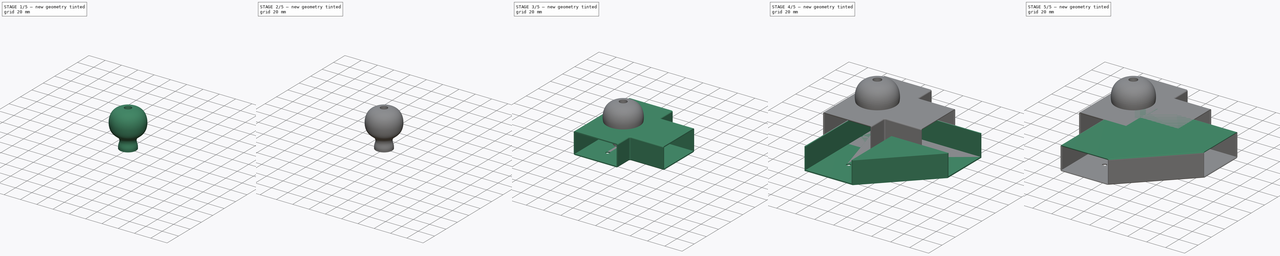
[diagram: build sequence overview — one tinted view per stage of 5, left to right]
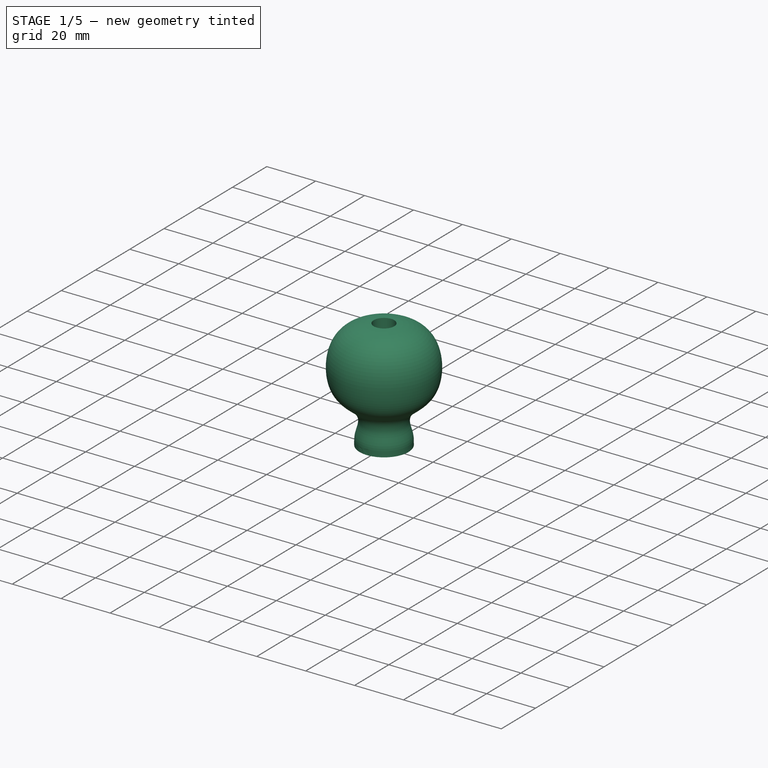
[diagram: stage 1 of 5 — iso view after this stage's code; geometry added in this stage tinted green]
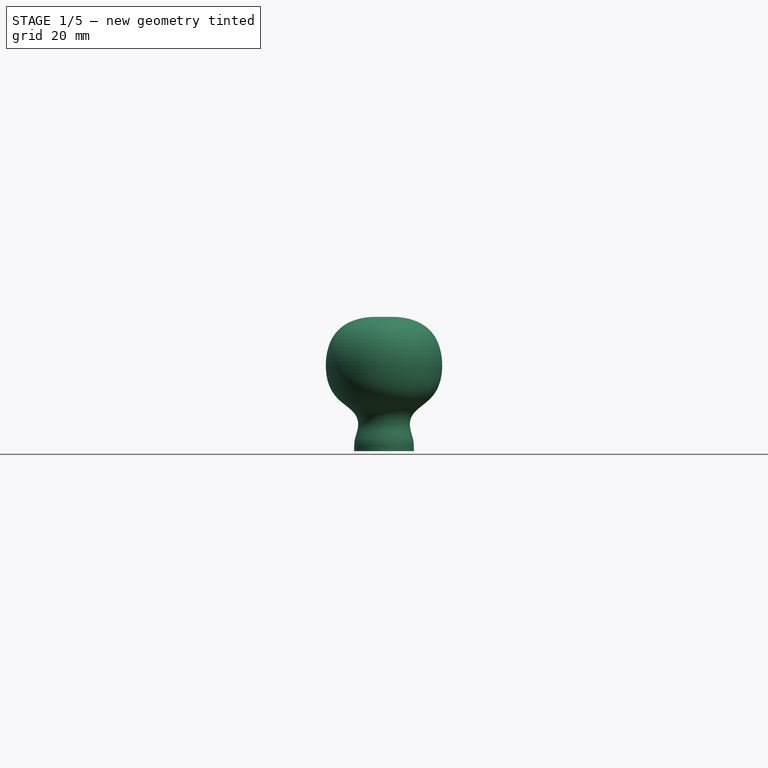
[diagram: stage 1 of 5 — front view after this stage's code; geometry added in this stage tinted green]
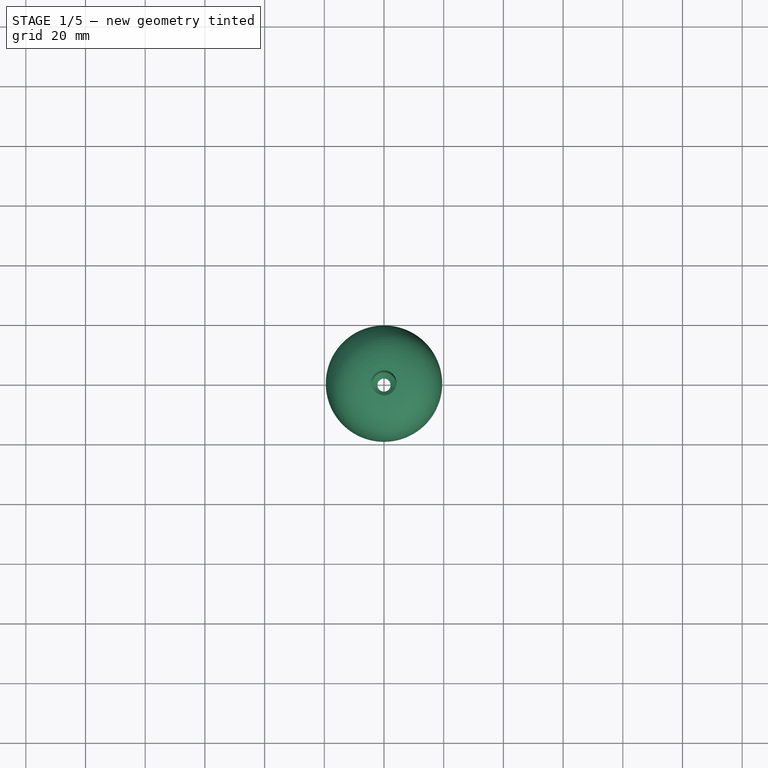
[diagram: stage 1 of 5 — top view after this stage's code; geometry added in this stage tinted green]
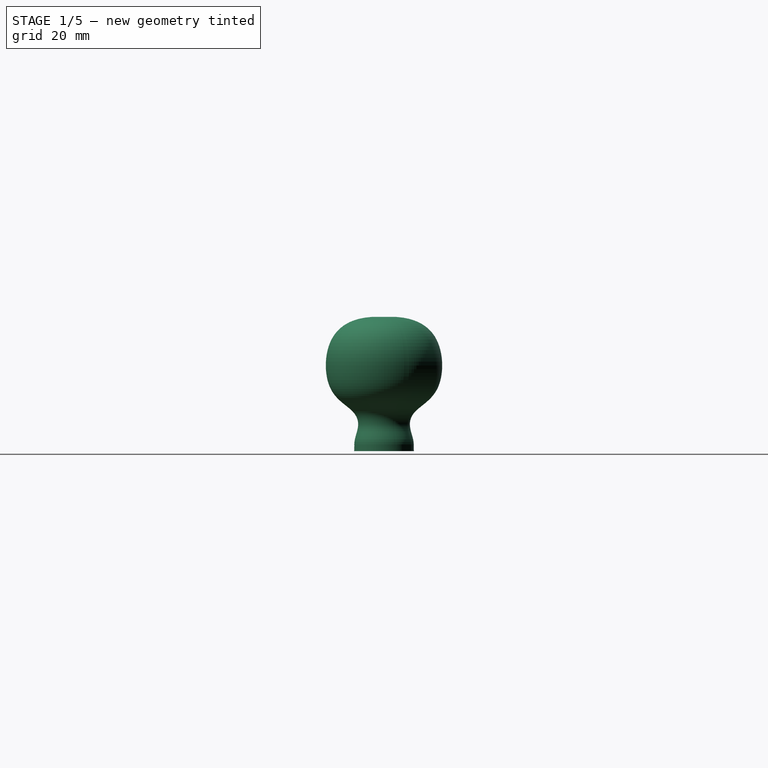
[diagram: stage 1 of 5 — right view after this stage's code; geometry added in this stage tinted green]
FCSTD DOCUMENT  (FreeCAD 0.19R24291 (Git))
Label: MosquitoNetFrame
License: All rights reserved
LicenseURL: http://en.wikipedia.org/wiki/All_rights_reserved
objects: Sketcher::SketchObject×11, PartDesign::Pad×7, PartDesign::Chamfer×4, PartDesign::Body×4, PartDesign::Fillet×3, Spreadsheet::Sheet×1, PartDesign::Revolution×1, PartDesign::Pocket×1
note: 47 computed .brp shape members not serialized (recipe doc carries the construction recipe); baked Part::Feature solids carry a one-line shape summary decoded from their .brp

FEATURE [PartDesign::Body] Body002  label="Washer"
  Group = -> [Sketch008,Pad006,Fillet002,Chamfer002]
  Origin = -> Origin002
  Tip = -> Chamfer002
FEATURE [Sketcher::SketchObject] Sketch009
  FullyConstrained = false
  MapMode = 5
  Placement = pos=(0,0,0) rot=(1,0,0;1.5708rad)
  Support = -> [XZ_Plane003]
  sketch-geometry (34):
    g0: GeomPoint X=-11.3292 Y=-24.0039 Z=0
    g1-g9: Circle x9 (B-spline internal-alignment scaffolding for g10; pole/knot coordinates omitted)
    g10: BSplineCurve PolesCount=9 KnotsCount=7 Degree=3 IsPeriodic=0
    g11-g17: GeomPoint x7 (B-spline internal-alignment scaffolding for g10; pole/knot coordinates omitted)
    g18: LineSegment StartX=-10 StartY=45 StartZ=0 EndX=-2.2 EndY=45 EndZ=0
    g19: LineSegment StartX=-10 StartY=0 StartZ=0 EndX=-2.2 EndY=0 EndZ=0
    g20: LineSegment StartX=-10 StartY=4 StartZ=0 EndX=-10 EndY=14 EndZ=0
    g21: LineSegment StartX=-10 StartY=14 StartZ=0 EndX=-8 EndY=9 EndZ=0
    g22: LineSegment StartX=-8 StartY=9 StartZ=0 EndX=-10 EndY=4 EndZ=0
    g23: LineSegment StartX=-2.2 StartY=0 StartZ=0 EndX=-2.2 EndY=45 EndZ=0
    g24: LineSegment StartX=-2.2 StartY=0 StartZ=0 EndX=0 EndY=0 EndZ=0
    g25: LineSegment StartX=0 StartY=0 StartZ=0 EndX=0 EndY=45 EndZ=0
    g26: LineSegment StartX=0 StartY=45 StartZ=0 EndX=-2.2 EndY=45 EndZ=0
    g27: LineSegment StartX=-10 StartY=4 StartZ=0 EndX=-10 EndY=0 EndZ=0
    g28: LineSegment StartX=-20 StartY=39.5 StartZ=0 EndX=-20 EndY=19.5 EndZ=0
    g29: LineSegment StartX=-10 StartY=45 StartZ=0 EndX=-10 EndY=39.5 EndZ=0
    g30: LineSegment StartX=-10 StartY=39.5 StartZ=0 EndX=-10 EndY=19.5 EndZ=0
    g31: LineSegment StartX=-10 StartY=19.5 StartZ=0 EndX=-10 EndY=14 EndZ=0
    g32: LineSegment StartX=-10 StartY=19.5 StartZ=0 EndX=-20 EndY=19.5 EndZ=0
    g33: LineSegment StartX=-20 StartY=39.5 StartZ=0 EndX=-10 EndY=39.5 EndZ=0
  constraints (57):
    c: Weight(g1) = 1
    c: Equal(g1, g2-g9) x8
    c: InternalAlignment(g1-g9 -> g10) x9
    c: InternalAlignment(g11-g17 -> g10) x7
    c: Coincident(g18,g2)
    c: Coincident(g18,g10)
    c: Horizontal(g18)
    c: Coincident(g19,g10)
    c: Horizontal(g19)
    c: Equal(g19,g18)
    c: Coincident(g20,g7)
    c: Coincident(g20,g5)
    c: Vertical(g20)
    c: Coincident(g21,g5)
    c: Coincident(g21,g6)
    c: Coincident(g22,g6)
    c: Coincident(g22,g7)
    c: Equal(g21,g22)
    c: Coincident(g23,g19)
    c: Coincident(g23,g10)
    c: Vertical(g23)
    c: Coincident(g19,g24)
    c: Horizontal(g24)
    c: Coincident(g24,g25)
    c: Vertical(g25)
    c: Coincident(g25,g26)
    c: Coincident(g26,g10)
    c: Horizontal(g26)
    c: DistanceX(g10,g24) = 10
    c: DistanceX(g24,g24) = 2.2
    c: DistanceX(g5,g6) = 2
    c: Coincident(g27,g7)
    c: Coincident(g27,g10)
    c: Vertical(g27)
    c: Symmetric(g7,g10,g8)
    c: Coincident(g28,g3)
    c: Coincident(g28,g4)
    c: Vertical(g28)
    c: DistanceY(g10,g7) = 4
    c: DistanceY(g20,g20) = 10
    c: Coincident(g24,g-1)  '__ANCHOR__'
    c: DistanceY(g23,g23) = 45
    c: DistanceY(g28,g28) = 20
    c: Coincident(g29,g2)
    c: Vertical(g29)
    c: Coincident(g30,g29)
    c: Vertical(g30)
    c: Coincident(g31,g30)
    c: Coincident(g31,g5)
    c: Coincident(g32,g30)
    c: Coincident(g32,g4)
    c: Horizontal(g32)
    c: Coincident(g33,g3)
    c: Coincident(g33,g29)
    c: Horizontal(g33)
    c: Equal(g31,g29)
    c: DistanceX(g3,g2) = 10
FEATURE [PartDesign::Revolution] Revolution
  Angle = 360
  Axis = (0,-2e-16,1)
  Base = (0,0,0)
  Placement = pos=(0,0,0) rot=(1,0,0;1.5708rad)
  Profile = -> Sketch009
  ReferenceAxis = -> Sketch009 [V_Axis]
FEATURE [Sketcher::SketchObject] Sketch010
  AttachmentOffset = pos=(0,0,4) rot=(0,0,1;0rad)
  FullyConstrained = true
  MapMode = 5
  Placement = pos=(0,0,4) rot=(0,0,1;0rad)
  Support = -> [XY_Plane003]
  sketch-geometry (1):
    g0: Circle CenterX=0 CenterY=0 CenterZ=0 NormalX=0 NormalY=0 NormalZ=1 AngleXU=0 Radius=4.2
  constraints (2):
    c: Coincident(g0,g-1)
    c: Radius(g0) = 4.2
FEATURE [PartDesign::Pocket] Pocket
  BaseFeature = -> Revolution
  Length = 5
  Length2 = 100
  Placement = pos=(0,0,0) rot=(1,0,0;1.5708rad)
  Profile = -> Sketch010
  Reversed = true
  Type = 1
FEATURE [PartDesign::Chamfer] Chamfer003
  Angle = 45
  Base = -> Pocket [Edge8]
  BaseFeature = -> Pocket
  ChamferType = 0
  FlipDirection = false
  Placement = pos=(0,0,0) rot=(1,0,0;1.5708rad)
  Size = 1.99
  Size2 = 1
  SupportTransform = false
FEATURE [PartDesign::Body] Body003  label="Knob"
  Group = -> [Sketch009,Revolution,Sketch010,Pocket,Chamfer003]
  Origin = -> Origin003
  Tip = -> Chamfer003
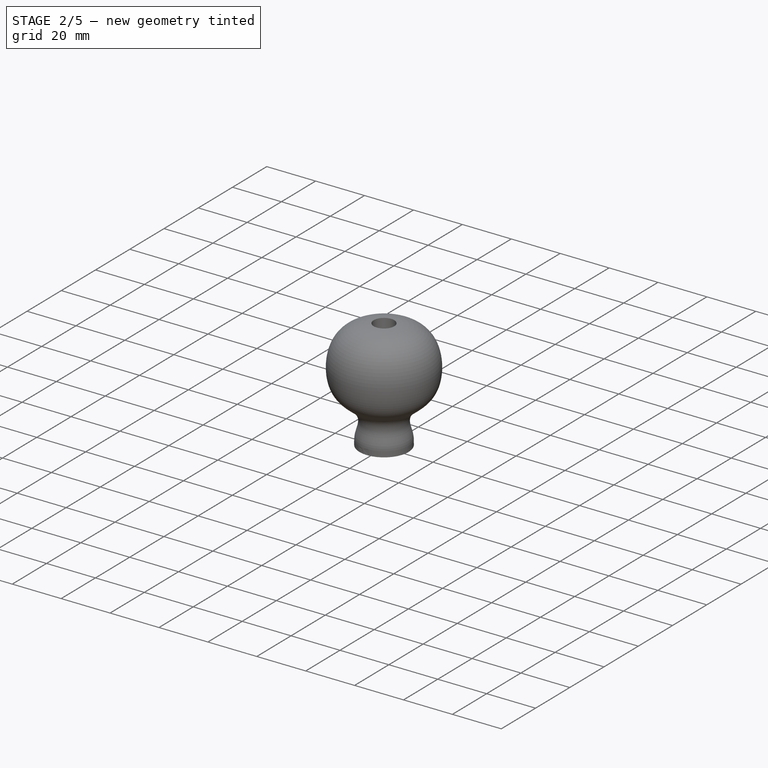
[diagram: stage 2 of 5 — iso view after this stage's code; geometry added in this stage tinted green]
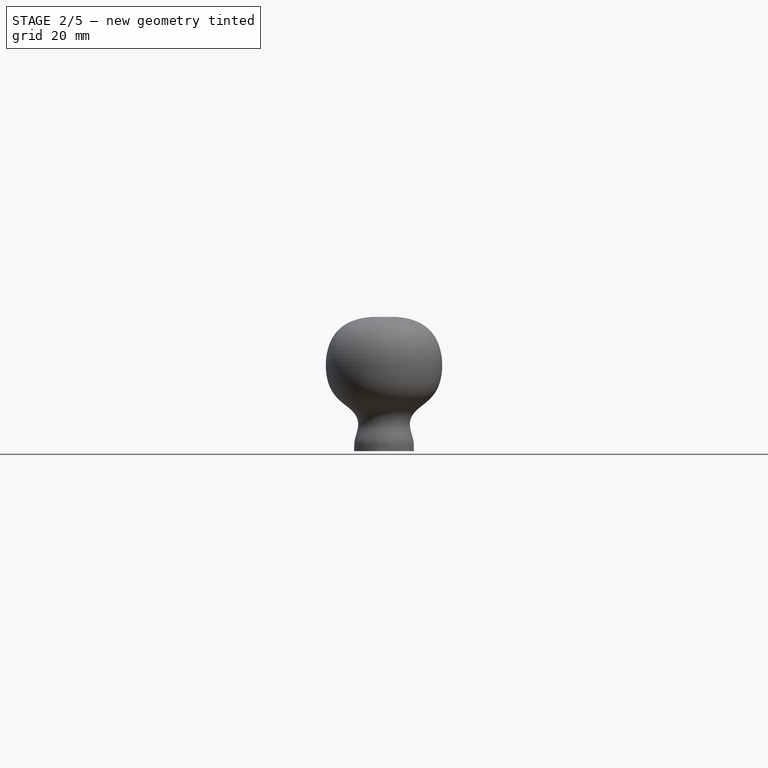
[diagram: stage 2 of 5 — front view after this stage's code; geometry added in this stage tinted green]
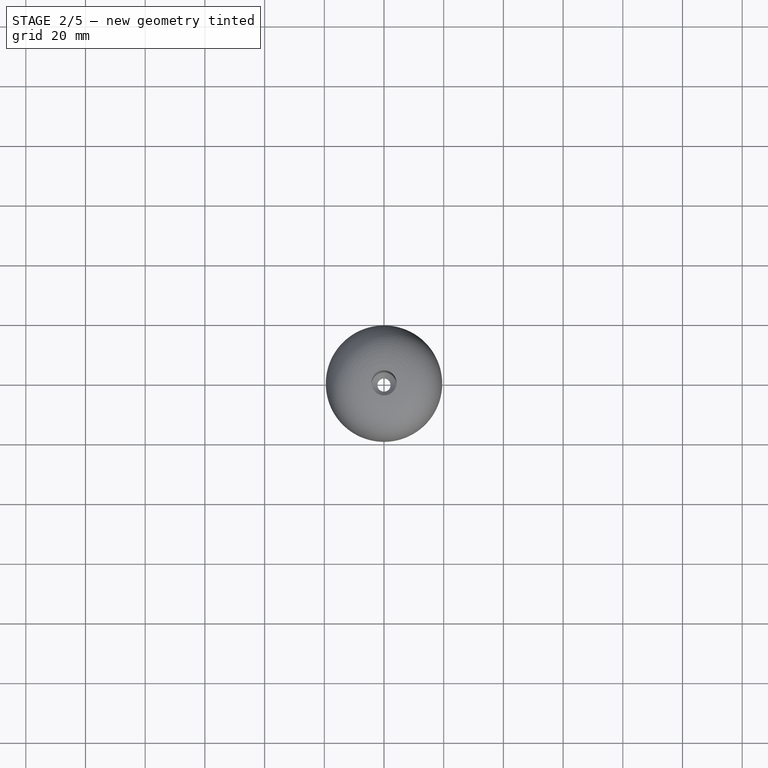
[diagram: stage 2 of 5 — top view after this stage's code; geometry added in this stage tinted green]
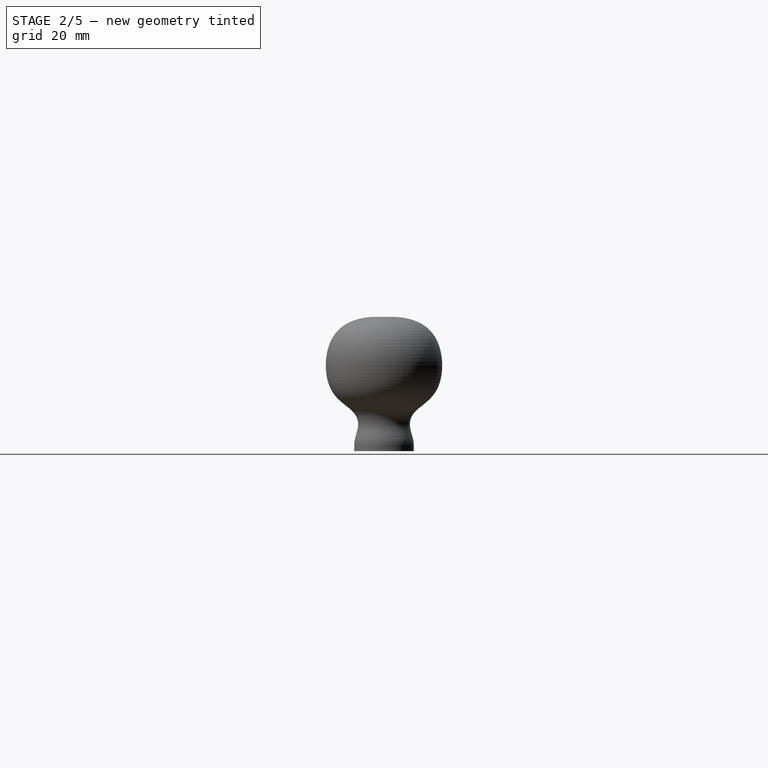
[diagram: stage 2 of 5 — right view after this stage's code; geometry added in this stage tinted green]
FEATURE [PartDesign::Body] Body001  label="MiddlePiece"
  Group = -> [Sketch004,Sketch005,Pad003,Sketch006,Pad004,Sketch007,Pad005,Fillet001,Chamfer001]
  Origin = -> Origin001
  Tip = -> Chamfer001
FEATURE [Sketcher::SketchObject] Sketch008
  FullyConstrained = true
  MapMode = 5
  Support = -> [XY_Plane002]
  sketch-geometry (2):
    g0: Circle CenterX=0 CenterY=0 CenterZ=0 NormalX=0 NormalY=0 NormalZ=1 AngleXU=0 Radius=2.2
    g1: Circle CenterX=0 CenterY=0 CenterZ=0 NormalX=0 NormalY=0 NormalZ=1 AngleXU=0 Radius=8.2
  constraints (4):
    c: Coincident(g0,g-1)
    c: Coincident(g1,g0)
    c: Radius(g0) = 2.2
    c: Radius(g1) = 8.2
FEATURE [PartDesign::Pad] Pad006
  Direction = (1,1,1)
  Length = 1.2
  Length2 = 100
  Profile = -> Sketch008
  Type = 0
FEATURE [PartDesign::Fillet] Fillet002
  Base = -> Pad006 [Edge3]
  BaseFeature = -> Pad006
  Radius = 1
  SupportTransform = false
FEATURE [PartDesign::Chamfer] Chamfer002
  Angle = 45
  Base = -> Fillet002 [Edge7]
  BaseFeature = -> Fillet002
  ChamferType = 0
  FlipDirection = false
  Size = 1
  Size2 = 1
  SupportTransform = false
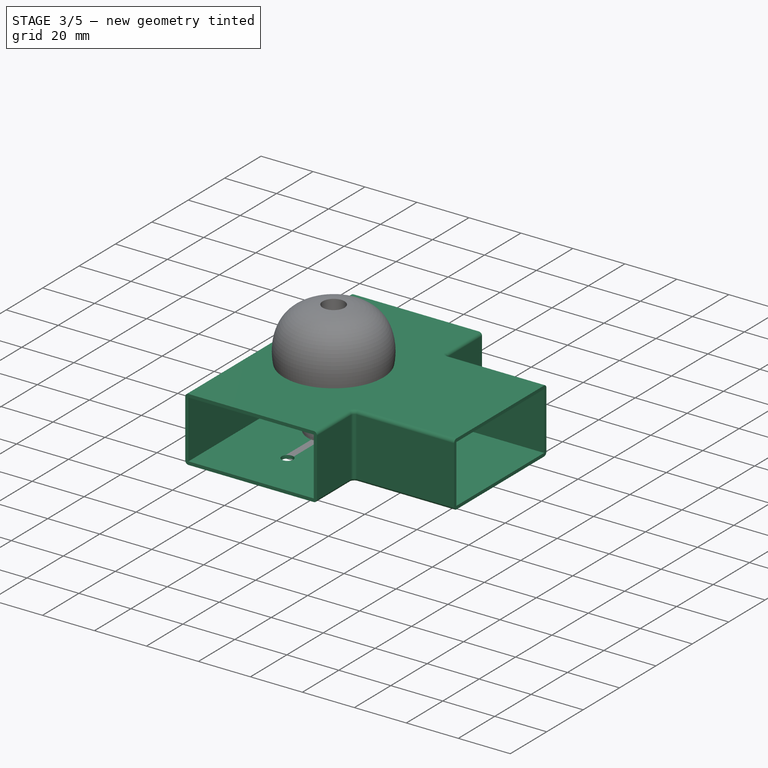
[diagram: stage 3 of 5 — iso view after this stage's code; geometry added in this stage tinted green]
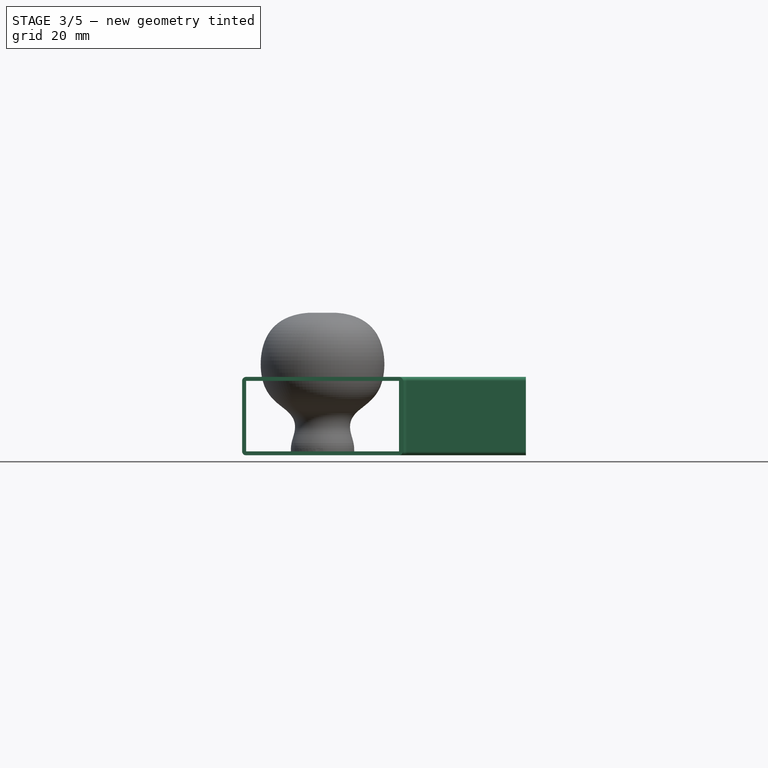
[diagram: stage 3 of 5 — front view after this stage's code; geometry added in this stage tinted green]
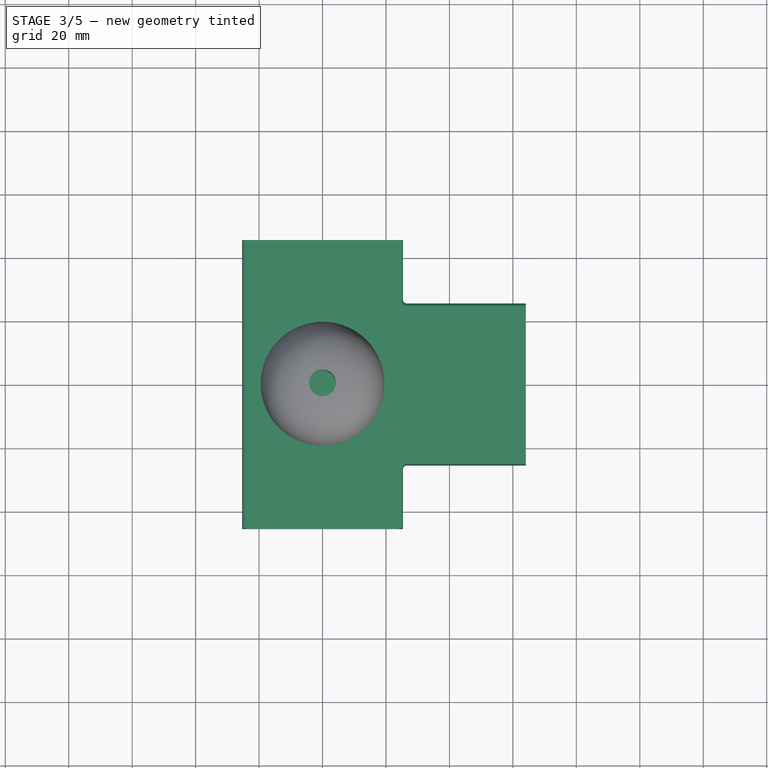
[diagram: stage 3 of 5 — top view after this stage's code; geometry added in this stage tinted green]
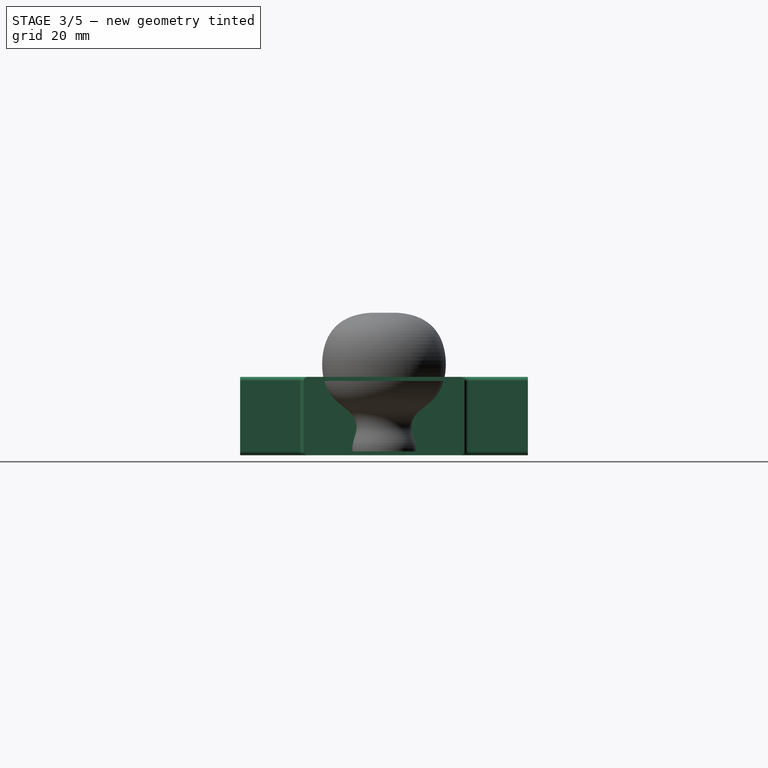
[diagram: stage 3 of 5 — right view after this stage's code; geometry added in this stage tinted green]
FEATURE [PartDesign::Body] Body  label="CornerPiece"
  Group = -> [Sketch,Sketch001,Pad,Sketch002,Pad001,Sketch003,Pad002,Fillet,Chamfer]
  Origin = -> Origin
  Tip = -> Chamfer
FEATURE [Spreadsheet::Sheet] Spreadsheet
  cells = B2=WallThickness; C2(WallThickness)==1.25mm; B3=SlatThickness; C3(SlatThickness)==22.2mm; B4=SlatWidth; C4(SlatWidth)==48.2mm
FEATURE [Sketcher::SketchObject] Sketch004  label="MP_Template_top"
  FullyConstrained = true
  MapMode = 5
  Support = -> [XY_Plane001]
  expr: Constraints[49] = <<Spreadsheet>>.WallThickness
  expr: Constraints[18] = <<Spreadsheet>>.SlatWidth
  sketch-geometry (23):
    g0: LineSegment StartX=-24.1 StartY=45.35 StartZ=0 EndX=-24.1 EndY=-45.35 EndZ=0
    g1: LineSegment StartX=-24.1 StartY=-45.35 StartZ=0 EndX=24.1 EndY=-45.35 EndZ=0
    g2: LineSegment StartX=24.1 StartY=-45.35 StartZ=0 EndX=24.1 EndY=-24.1 EndZ=0
    g3: LineSegment StartX=24.1 StartY=-24.1 StartZ=0 EndX=64.1 EndY=-24.1 EndZ=0
    g4: LineSegment StartX=64.1 StartY=-24.1 StartZ=0 EndX=64.1 EndY=24.1 EndZ=0
    g5: LineSegment StartX=64.1 StartY=24.1 StartZ=0 EndX=24.1 EndY=24.1 EndZ=0
    g6: LineSegment StartX=24.1 StartY=24.1 StartZ=0 EndX=24.1 EndY=45.35 EndZ=0
    g7: LineSegment StartX=24.1 StartY=45.35 StartZ=0 EndX=-24.1 EndY=45.35 EndZ=0
    g8: LineSegment StartX=-24.1 StartY=-45.35 StartZ=0 EndX=-25.35 EndY=-45.35 EndZ=0
    g9: LineSegment StartX=-25.35 StartY=-45.35 StartZ=0 EndX=-25.35 EndY=45.35 EndZ=0
    g10: LineSegment StartX=-25.35 StartY=45.35 StartZ=0 EndX=-24.1 EndY=45.35 EndZ=0
    g11: LineSegment StartX=24.1 StartY=45.35 StartZ=0 EndX=25.35 EndY=45.35 EndZ=0
    g12: LineSegment StartX=25.35 StartY=45.35 StartZ=0 EndX=25.35 EndY=25.35 EndZ=0
    g13: LineSegment StartX=25.35 StartY=25.35 StartZ=0 EndX=64.1 EndY=25.35 EndZ=0
    g14: LineSegment StartX=64.1 StartY=25.35 StartZ=0 EndX=64.1 EndY=24.1 EndZ=0
    g15: LineSegment StartX=24.1 StartY=-45.35 StartZ=0 EndX=25.35 EndY=-45.35 EndZ=0
    g16: LineSegment StartX=25.35 StartY=-45.35 StartZ=0 EndX=25.35 EndY=-25.35 EndZ=0
    g17: LineSegment StartX=25.35 StartY=-25.35 StartZ=0 EndX=64.1 EndY=-25.35 EndZ=0
    g18: LineSegment StartX=64.1 StartY=-25.35 StartZ=0 EndX=64.1 EndY=-24.1 EndZ=0
    g19: Circle CenterX=-3e-15 CenterY=-25.35 CenterZ=0 NormalX=0 NormalY=0 NormalZ=1 AngleXU=0 Radius=2.2
    g20: Circle CenterX=-3e-15 CenterY=25.35 CenterZ=0 NormalX=0 NormalY=0 NormalZ=1 AngleXU=0 Radius=2.2
    g21: Circle CenterX=44.1 CenterY=-4.1e-15 CenterZ=0 NormalX=0 NormalY=0 NormalZ=1 AngleXU=0 Radius=2.2
    g22: LineSegment StartX=-3e-15 StartY=45.35 StartZ=0 EndX=-3e-15 EndY=-45.35 EndZ=0
  constraints (64):
    c: Vertical(g0)
    c: Coincident(g0,g1)
    c: Horizontal(g1)
    c: Coincident(g1,g2)
    c: Vertical(g2)
    c: Coincident(g2,g3)
    c: Horizontal(g3)
    c: Coincident(g3,g4)
    c: Vertical(g4)
    c: Coincident(g4,g5)
    c: Coincident(g5,g6)
    c: Vertical(g6)
    c: Coincident(g6,g7)
    c: Coincident(g7,g0)
    c: Horizontal(g7)
    c: Horizontal(g5)
    c: Equal(g7,g4)
    c: Equal(g4,g1)
    c: DistanceX(g1,g1) = 48.2
    c: Equal(g2,g6)
    c: Coincident(g0,g8)
    c: Horizontal(g8)
    c: Coincident(g8,g9)
    c: Vertical(g9)
    c: Coincident(g9,g10)
    c: Coincident(g10,g0)
    c: Horizontal(g10)
    c: Coincident(g6,g11)
    c: Horizontal(g11)
    c: Coincident(g11,g12)
    c: Vertical(g12)
    c: Coincident(g12,g13)
    c: Horizontal(g13)
    c: Coincident(g13,g14)
    c: Coincident(g14,g4)
    c: Vertical(g14)
    c: Coincident(g1,g15)
    c: Horizontal(g15)
    c: Coincident(g15,g16)
    c: Vertical(g16)
    c: Coincident(g16,g17)
    c: Horizontal(g17)
    c: Coincident(g17,g18)
    c: Coincident(g18,g3)
    c: Vertical(g18)
    c: Equal(g15,g18)
    c: Equal(g18,g14)
    c: Equal(g14,g11)
    c: Equal(g11,g10)
    c: DistanceX(g8,g0) = 1.25
    c: DistanceY(g15,g17) = 20
    c: DistanceX(g6,g13) = 40
    c: Equal(g19,g21)
    c: Equal(g21,g20)
    c: Symmetric(g5,g3,g21)
    c: Radius(g21) = 2.2
    c: Symmetric(g0,g1,g-1)  '__ANCHOR__'
    c: PointOnObject(g22,g1)
    c: Vertical(g22)
    c: Symmetric(g0,g6,g22)
    c: PointOnObject(g20,g22)
    c: PointOnObject(g19,g22)
    c: PointOnObject(g20,g13)
    c: PointOnObject(g19,g17)
FEATURE [Sketcher::SketchObject] Sketch005  label="MP_Base"
  ExternalGeometry = -> [Sketch004]
  FullyConstrained = true
  MapMode = 5
  Support = -> [XY_Plane001]
  sketch-geometry (11):
    g0: LineSegment StartX=-25.35 StartY=45.35 StartZ=0 EndX=-25.35 EndY=-45.35 EndZ=0
    g1: LineSegment StartX=-25.35 StartY=-45.35 StartZ=0 EndX=25.35 EndY=-45.35 EndZ=0
    g2: LineSegment StartX=25.35 StartY=-45.35 StartZ=0 EndX=25.35 EndY=-25.35 EndZ=0
    g3: LineSegment StartX=25.35 StartY=-25.35 StartZ=0 EndX=64.1 EndY=-25.35 EndZ=0
    g4: LineSegment StartX=64.1 StartY=-25.35 StartZ=0 EndX=64.1 EndY=25.35 EndZ=0
    g5: LineSegment StartX=64.1 StartY=25.35 StartZ=0 EndX=25.35 EndY=25.35 EndZ=0
    g6: LineSegment StartX=25.35 StartY=25.35 StartZ=0 EndX=25.35 EndY=45.35 EndZ=0
    g7: LineSegment StartX=25.35 StartY=45.35 StartZ=0 EndX=-25.35 EndY=45.35 EndZ=0
    g8: Circle CenterX=0 CenterY=25.35 CenterZ=0 NormalX=0 NormalY=0 NormalZ=1 AngleXU=0 Radius=2.2
    g9: Circle CenterX=44.1 CenterY=0 CenterZ=0 NormalX=0 NormalY=0 NormalZ=1 AngleXU=0 Radius=2.2
    g10: Circle CenterX=0 CenterY=-25.35 CenterZ=0 NormalX=0 NormalY=0 NormalZ=1 AngleXU=0 Radius=2.2
  constraints (22):
    c: Coincident(g-3,g0)
    c: Coincident(g0,g-3)
    c: Coincident(g0,g1)
    c: Coincident(g1,g-7)
    c: Coincident(g1,g2)
    c: Coincident(g2,g-7)
    c: Coincident(g2,g3)
    c: Coincident(g3,g-5)
    c: Coincident(g3,g4)
    c: Coincident(g4,g-4)
    c: Coincident(g4,g5)
    c: Coincident(g5,g-6)
    c: Coincident(g5,g6)
    c: Coincident(g6,g-6)
    c: Coincident(g6,g7)
    c: Coincident(g7,g0)
    c: Coincident(g8,g-8)
    c: Coincident(g9,g-9)
    c: Coincident(g10,g-10)
    c: Equal(g10,g-10)
    c: Equal(g9,g-9)
    c: Equal(g-8,g8)
FEATURE [PartDesign::Pad] Pad003  label="MP_Base_"
  Direction = (1,1,1)
  Length = 1.25
  Length2 = 100
  Profile = -> Sketch005
  Type = 0
  expr: Length = <<Spreadsheet>>.WallThickness
FEATURE [Sketcher::SketchObject] Sketch006  label="MP_Walls"
  AttachmentOffset = pos=(0,0,1.25) rot=(0,0,1;0rad)
  ExternalGeometry = -> [Sketch004]
  FullyConstrained = true
  MapMode = 5
  Placement = pos=(0,0,1.25) rot=(0,0,1;0rad)
  Support = -> [XY_Plane001]
  expr: .AttachmentOffset.Base.z = <<MP_Base>>.AttachmentOffset.Base.z + <<MP_Base_>>.Length
  sketch-geometry (16):
    g0: LineSegment StartX=-25.35 StartY=45.35 StartZ=0 EndX=-24.1 EndY=45.35 EndZ=0
    g1: LineSegment StartX=-24.1 StartY=45.35 StartZ=0 EndX=-24.1 EndY=-45.35 EndZ=0
    g2: LineSegment StartX=-24.1 StartY=-45.35 StartZ=0 EndX=-25.35 EndY=-45.35 EndZ=0
    g3: LineSegment StartX=-25.35 StartY=-45.35 StartZ=0 EndX=-25.35 EndY=45.35 EndZ=0
    g4: LineSegment StartX=24.1 StartY=45.35 StartZ=0 EndX=24.1 EndY=24.1 EndZ=0
    g5: LineSegment StartX=24.1 StartY=24.1 StartZ=0 EndX=64.1 EndY=24.1 EndZ=0
    g6: LineSegment StartX=64.1 StartY=24.1 StartZ=0 EndX=64.1 EndY=25.35 EndZ=0
    g7: LineSegment StartX=64.1 StartY=25.35 StartZ=0 EndX=25.35 EndY=25.35 EndZ=0
    g8: LineSegment StartX=25.35 StartY=25.35 StartZ=0 EndX=25.35 EndY=45.35 EndZ=0
    g9: LineSegment StartX=25.35 StartY=45.35 StartZ=0 EndX=24.1 EndY=45.35 EndZ=0
    g10: LineSegment StartX=24.1 StartY=-45.35 StartZ=0 EndX=25.35 EndY=-45.35 EndZ=0
    g11: LineSegment StartX=25.35 StartY=-45.35 StartZ=0 EndX=25.35 EndY=-25.35 EndZ=0
    g12: LineSegment StartX=25.35 StartY=-25.35 StartZ=0 EndX=64.1 EndY=-25.35 EndZ=0
    g13: LineSegment StartX=64.1 StartY=-25.35 StartZ=0 EndX=64.1 EndY=-24.1 EndZ=0
    g14: LineSegment StartX=64.1 StartY=-24.1 StartZ=0 EndX=24.1 EndY=-24.1 EndZ=0
    g15: LineSegment StartX=24.1 StartY=-24.1 StartZ=0 EndX=24.1 EndY=-45.35 EndZ=0
  constraints (32):
    c: Coincident(g-3,g0)
    c: Coincident(g0,g-3)
    c: Coincident(g0,g1)
    c: Coincident(g1,g-4)
    c: Coincident(g1,g2)
    c: Coincident(g2,g-4)
    c: Coincident(g2,g3)
    c: Coincident(g3,g0)
    c: Coincident(g-9,g4)
    c: Coincident(g4,g-9)
    c: Coincident(g4,g5)
    c: Coincident(g5,g-8)
    c: Coincident(g5,g6)
    c: Coincident(g6,g-8)
    c: Coincident(g6,g7)
    c: Coincident(g7,g-10)
    c: Coincident(g7,g8)
    c: Coincident(g8,g-10)
    c: Coincident(g8,g9)
    c: Coincident(g9,g4)
    c: Coincident(g-5,g10)
    c: Coincident(g10,g-6)
    c: Coincident(g10,g11)
    c: Coincident(g11,g-6)
    c: Coincident(g11,g12)
    c: Coincident(g12,g-7)
    c: Coincident(g12,g13)
    c: Coincident(g13,g-7)
    c: Coincident(g13,g14)
    c: Coincident(g14,g-5)
    c: Coincident(g14,g15)
    c: Coincident(g15,g10)
FEATURE [PartDesign::Pad] Pad004  label="MP_Walls_"
  BaseFeature = -> Pad003
  Direction = (1,1,1)
  Length = 22.2
  Length2 = 100
  Profile = -> Sketch006
  Type = 0
  expr: Length = <<Spreadsheet>>.SlatThickness
FEATURE [Sketcher::SketchObject] Sketch007  label="MP_Top"
  AttachmentOffset = pos=(0,0,23.45) rot=(0,0,1;0rad)
  ExternalGeometry = -> [Sketch004]
  FullyConstrained = true
  MapMode = 5
  Placement = pos=(0,0,23.45) rot=(0,0,1;0rad)
  Support = -> [XY_Plane001]
  expr: .AttachmentOffset.Base.z = <<MP_Walls>>.AttachmentOffset.Base.z + <<MP_Walls_>>.Length
  sketch-geometry (8):
    g0: LineSegment StartX=-25.35 StartY=45.35 StartZ=0 EndX=-25.35 EndY=-45.35 EndZ=0
    g1: LineSegment StartX=-25.35 StartY=-45.35 StartZ=0 EndX=25.35 EndY=-45.35 EndZ=0
    g2: LineSegment StartX=25.35 StartY=-45.35 StartZ=0 EndX=25.35 EndY=-25.35 EndZ=0
    g3: LineSegment StartX=25.35 StartY=-25.35 StartZ=0 EndX=64.1 EndY=-25.35 EndZ=0
    g4: LineSegment StartX=64.1 StartY=-25.35 StartZ=0 EndX=64.1 EndY=25.35 EndZ=0
    g5: LineSegment StartX=64.1 StartY=25.35 StartZ=0 EndX=25.35 EndY=25.35 EndZ=0
    g6: LineSegment StartX=25.35 StartY=25.35 StartZ=0 EndX=25.35 EndY=45.35 EndZ=0
    g7: LineSegment StartX=25.35 StartY=45.35 StartZ=0 EndX=-25.35 EndY=45.35 EndZ=0
  constraints (16):
    c: Coincident(g-3,g0)
    c: Coincident(g0,g-3)
    c: Coincident(g0,g1)
    c: Coincident(g1,g-4)
    c: Coincident(g1,g2)
    c: Coincident(g2,g-4)
    c: Coincident(g2,g3)
    c: Coincident(g3,g-7)
    c: Coincident(g3,g4)
    c: Coincident(g4,g-6)
    c: Coincident(g4,g5)
    c: Coincident(g5,g-5)
    c: Coincident(g5,g6)
    c: Coincident(g6,g-5)
    c: Coincident(g6,g7)
    c: Coincident(g7,g0)
FEATURE [PartDesign::Pad] Pad005  label="MP_Top_"
  BaseFeature = -> Pad004
  Direction = (1,1,1)
  Length = 1.25
  Length2 = 100
  Profile = -> Sketch007
  Refine = true
  Type = 0
  expr: Length = <<Spreadsheet>>.WallThickness
FEATURE [PartDesign::Fillet] Fillet001
  Base = -> Pad005 [Edge7,Edge1,Edge3,Edge4,Edge6,Edge50,Edge49,Edge46,Edge47,Edge43,Edge55,Edge54]
  BaseFeature = -> Pad005
  Radius = 1.25
  SupportTransform = false
  expr: Radius = <<Spreadsheet>>.WallThickness
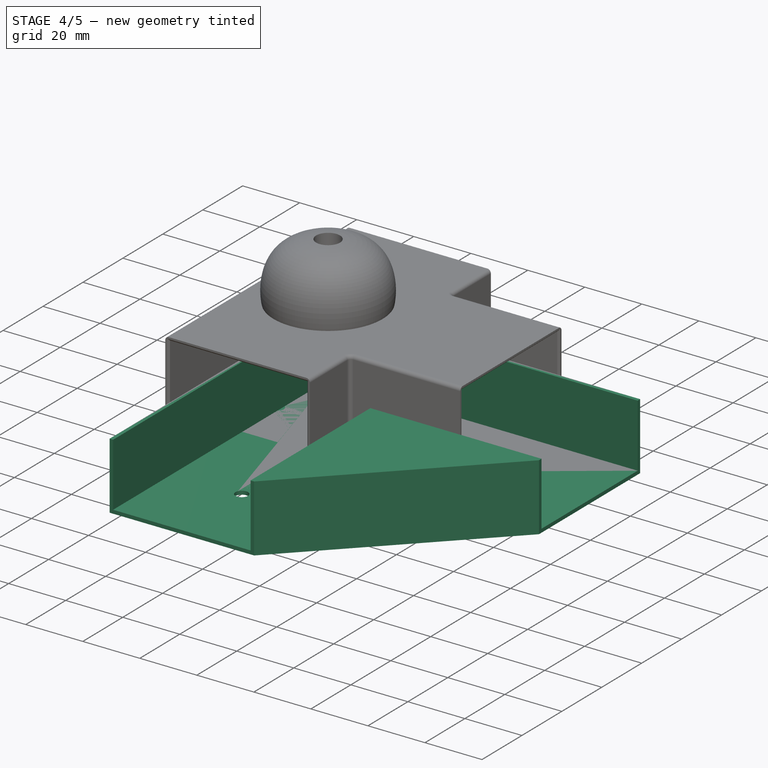
[diagram: stage 4 of 5 — iso view after this stage's code; geometry added in this stage tinted green]
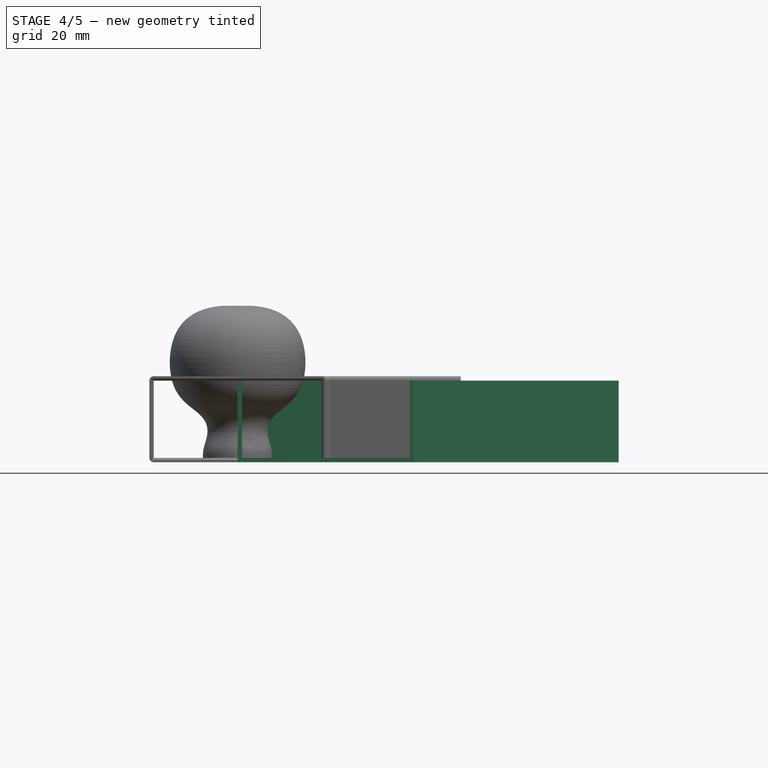
[diagram: stage 4 of 5 — front view after this stage's code; geometry added in this stage tinted green]
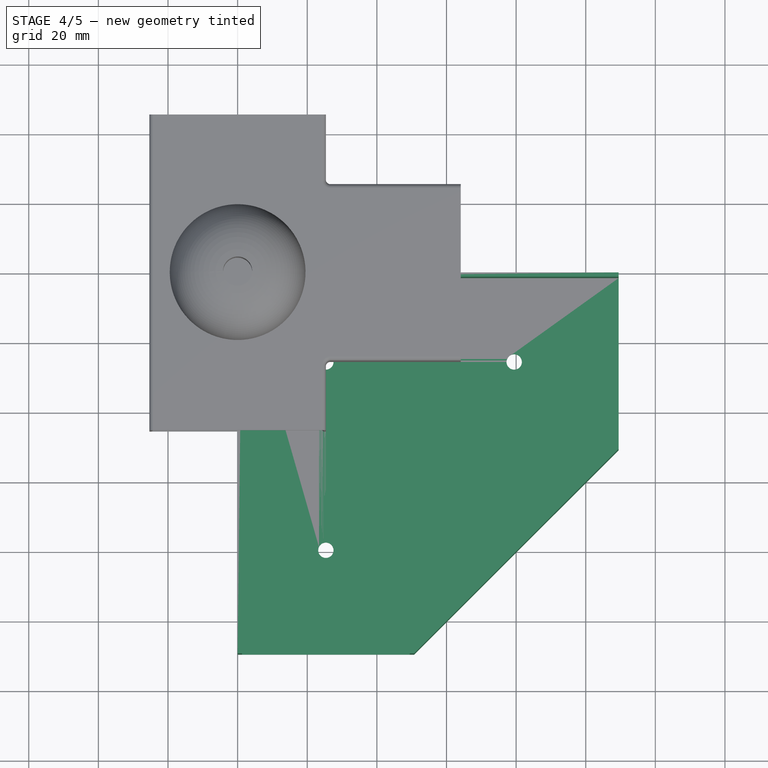
[diagram: stage 4 of 5 — top view after this stage's code; geometry added in this stage tinted green]
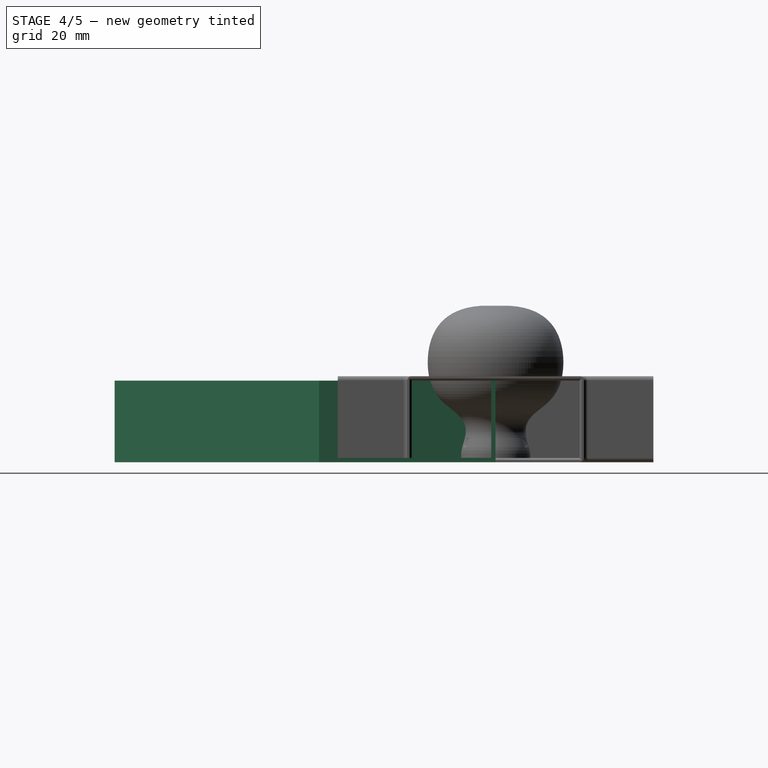
[diagram: stage 4 of 5 — right view after this stage's code; geometry added in this stage tinted green]
FEATURE [Sketcher::SketchObject] Sketch  label="CP_Template_top"
  FullyConstrained = true
  MapMode = 5
  Support = -> [XY_Plane]
  expr: Constraints[38] = <<Spreadsheet>>.SlatWidth
  expr: Constraints[37] = <<Spreadsheet>>.WallThickness
  sketch-geometry (18):
    g0: LineSegment StartX=49.45 StartY=-109.45 StartZ=0 EndX=1.25 EndY=-109.45 EndZ=0
    g1: LineSegment StartX=1.25 StartY=-109.45 StartZ=0 EndX=1.25 EndY=-1.25 EndZ=0
    g2: LineSegment StartX=1.25 StartY=-1.25 StartZ=0 EndX=109.45 EndY=-1.25 EndZ=0
    g3: LineSegment StartX=109.45 StartY=-1.25 StartZ=0 EndX=109.45 EndY=-49.45 EndZ=0
    g4: LineSegment StartX=49.45 StartY=-109.45 StartZ=0 EndX=49.45 EndY=-49.45 EndZ=0
    g5: LineSegment StartX=49.45 StartY=-49.45 StartZ=0 EndX=109.45 EndY=-49.45 EndZ=0
    g6: LineSegment StartX=1.25 StartY=-109.45 StartZ=0 EndX=0 EndY=-109.45 EndZ=0
    g7: LineSegment StartX=0 StartY=-109.45 StartZ=0 EndX=0 EndY=0 EndZ=0
    g8: LineSegment StartX=0 StartY=0 StartZ=0 EndX=109.45 EndY=0 EndZ=0
    g9: LineSegment StartX=109.45 StartY=0 StartZ=0 EndX=109.45 EndY=-1.25 EndZ=0
    g10: LineSegment StartX=49.45 StartY=-109.45 StartZ=0 EndX=50.7 EndY=-109.45 EndZ=0
    g11: LineSegment StartX=50.7 StartY=-109.45 StartZ=0 EndX=50.7 EndY=-50.7 EndZ=0
    g12: LineSegment StartX=50.7 StartY=-50.7 StartZ=0 EndX=109.45 EndY=-50.7 EndZ=0
    g13: LineSegment StartX=109.45 StartY=-50.7 StartZ=0 EndX=109.45 EndY=-49.45 EndZ=0
    g14: LineSegment StartX=50.7 StartY=-109.45 StartZ=0 EndX=109.45 EndY=-50.7 EndZ=0
    g15: Circle CenterX=25.35 CenterY=-79.45 CenterZ=0 NormalX=0 NormalY=0 NormalZ=1 AngleXU=0 Radius=2.2
    g16: Circle CenterX=79.45 CenterY=-25.35 CenterZ=0 NormalX=0 NormalY=0 NormalZ=1 AngleXU=0 Radius=2.2
    g17: Circle CenterX=25.35 CenterY=-25.35 CenterZ=0 NormalX=0 NormalY=0 NormalZ=1 AngleXU=0 Radius=2.2
  constraints (48):
    c: Horizontal(g0)
    c: Coincident(g0,g1)
    c: Vertical(g1)
    c: Coincident(g1,g2)
    c: Horizontal(g2)
    c: Coincident(g2,g3)
    c: Vertical(g3)
    c: Coincident(g0,g4)
    c: Vertical(g4)
    c: Coincident(g4,g5)
    c: Coincident(g5,g3)
    c: Horizontal(g5)
    c: Equal(g2,g1)
    c: Equal(g0,g3)
    c: Coincident(g0,g6)
    c: Horizontal(g6)
    c: Coincident(g6,g7)
    c: Vertical(g7)
    c: Coincident(g7,g8)
    c: Horizontal(g8)
    c: Coincident(g8,g9)
    c: Coincident(g9,g2)
    c: Vertical(g9)
    c: Coincident(g0,g10)
    c: Horizontal(g10)
    c: Coincident(g10,g11)
    c: Vertical(g11)
    c: Coincident(g11,g12)
    c: Horizontal(g12)
    c: Coincident(g12,g13)
    c: Coincident(g13,g3)
    c: Vertical(g13)
    c: Equal(g13,g9)
    c: Equal(g9,g6)
    c: Equal(g6,g10)
    c: Coincident(g14,g10)
    c: Coincident(g14,g12)
    c: DistanceX(g6,g6) = 1.25
    c: DistanceX(g0,g0) = 48.2
    c: DistanceX(g1,g8) = 108.2
    c: Coincident(g7,g-1)  '__ANCHOR__'
    c: Radius(g15) = 2.2
    c: Symmetric(g4,g2,g16)
    c: Equal(g16,g15)
    c: Symmetric(g1,g4,g17)
    c: Equal(g17,g16)
    c: Symmetric(g4,g0,g15)
    c: DistanceY(g6,g4) = 60
FEATURE [Sketcher::SketchObject] Sketch001  label="CP_Base"
  ExternalGeometry = -> [Sketch]
  FullyConstrained = true
  MapMode = 5
  Support = -> [XY_Plane]
  sketch-geometry (8):
    g0: LineSegment StartX=0 StartY=-109.45 StartZ=0 EndX=0 EndY=0 EndZ=0
    g1: LineSegment StartX=0 StartY=0 StartZ=0 EndX=109.45 EndY=-4e-16 EndZ=0
    g2: LineSegment StartX=109.45 StartY=-4e-16 StartZ=0 EndX=109.45 EndY=-50.7 EndZ=0
    g3: LineSegment StartX=109.45 StartY=-50.7 StartZ=0 EndX=50.7 EndY=-109.45 EndZ=0
    g4: LineSegment StartX=50.7 StartY=-109.45 StartZ=0 EndX=0 EndY=-109.45 EndZ=0
    g5: Circle CenterX=25.35 CenterY=-25.35 CenterZ=0 NormalX=0 NormalY=0 NormalZ=1 AngleXU=0 Radius=2.2
    g6: Circle CenterX=79.45 CenterY=-25.35 CenterZ=0 NormalX=0 NormalY=0 NormalZ=1 AngleXU=0 Radius=2.2
    g7: Circle CenterX=25.35 CenterY=-79.45 CenterZ=0 NormalX=0 NormalY=0 NormalZ=1 AngleXU=0 Radius=2.2
  constraints (16):
    c: Coincident(g-4,g0)
    c: Coincident(g0,g1)
    c: Coincident(g1,g-3)
    c: Coincident(g-4,g0)
    c: Coincident(g1,g2)
    c: Coincident(g2,g-5)
    c: Coincident(g2,g3)
    c: Coincident(g3,g-5)
    c: Coincident(g3,g4)
    c: Coincident(g4,g0)
    c: Coincident(g5,g-6)
    c: Coincident(g6,g-7)
    c: Coincident(g7,g-8)
    c: Equal(g7,g-8)
    c: Equal(g5,g-6)
    c: Equal(g6,g-7)
FEATURE [PartDesign::Pad] Pad  label="CP_Base_"
  Direction = (1,1,1)
  Length = 1.25
  Length2 = 100
  Profile = -> Sketch001
  Type = 0
  expr: Length = Spreadsheet.WallThickness
FEATURE [Sketcher::SketchObject] Sketch002  label="CP_Walls"
  AttachmentOffset = pos=(0,0,1.25) rot=(0,0,1;0rad)
  ExternalGeometry = -> [Sketch]
  FullyConstrained = true
  MapMode = 5
  Placement = pos=(0,0,1.25) rot=(0,0,1;0rad)
  Support = -> [XY_Plane]
  expr: .AttachmentOffset.Base.z = <<CP_Base>>.AttachmentOffset.Base.z + <<CP_Base_>>.Length
  sketch-geometry (11):
    g0: LineSegment StartX=109.45 StartY=-50.7 StartZ=0 EndX=50.7 EndY=-109.45 EndZ=0
    g1: LineSegment StartX=50.7 StartY=-109.45 StartZ=0 EndX=49.45 EndY=-109.45 EndZ=0
    g2: LineSegment StartX=49.45 StartY=-109.45 StartZ=0 EndX=49.45 EndY=-49.45 EndZ=0
    g3: LineSegment StartX=49.45 StartY=-49.45 StartZ=0 EndX=109.45 EndY=-49.45 EndZ=0
    g4: LineSegment StartX=109.45 StartY=-49.45 StartZ=0 EndX=109.45 EndY=-50.7 EndZ=0
    g5: LineSegment StartX=109.45 StartY=0 StartZ=0 EndX=0 EndY=0 EndZ=0
    g6: LineSegment StartX=0 StartY=0 StartZ=0 EndX=0 EndY=-109.45 EndZ=0
    g7: LineSegment StartX=0 StartY=-109.45 StartZ=0 EndX=1.25 EndY=-109.45 EndZ=0
    g8: LineSegment StartX=1.25 StartY=-109.45 StartZ=0 EndX=1.25 EndY=-1.25 EndZ=0
    g9: LineSegment StartX=1.25 StartY=-1.25 StartZ=0 EndX=109.45 EndY=-1.25 EndZ=0
    g10: LineSegment StartX=109.45 StartY=-1.25 StartZ=0 EndX=109.45 EndY=0 EndZ=0
  constraints (22):
    c: Coincident(g-9,g0)
    c: Coincident(g0,g-9)
    c: Coincident(g0,g1)
    c: Coincident(g1,g-8)
    c: Coincident(g1,g2)
    c: Coincident(g2,g-8)
    c: Coincident(g2,g3)
    c: Coincident(g3,g-7)
    c: Coincident(g3,g4)
    c: Coincident(g4,g0)
    c: Coincident(g-3,g5)
    c: Coincident(g5,g6)
    c: Coincident(g6,g-4)
    c: Coincident(g6,g7)
    c: Coincident(g7,g-5)
    c: Coincident(g7,g8)
    c: Coincident(g8,g-6)
    c: Coincident(g8,g9)
    c: Coincident(g9,g-6)
    c: Coincident(g9,g10)
    c: Coincident(g10,g5)
    c: Coincident(g-3,g5)
FEATURE [PartDesign::Pad] Pad001  label="CP_Walls_"
  BaseFeature = -> Pad
  Direction = (1,1,1)
  Length = 22.2
  Length2 = 100
  Profile = -> Sketch002
  Type = 0
  expr: Length = <<Spreadsheet>>.SlatThickness
FEATURE [PartDesign::Chamfer] Chamfer001
  Angle = 45
  Base = -> Fillet001 [Edge36,Edge35,Edge21,Edge22,Edge54,Edge55,Edge56,Edge53,Edge37,Edge38,Edge24,Edge23]
  BaseFeature = -> Fillet001
  ChamferType = 0
  FlipDirection = false
  Size = 0.6
  Size2 = 1
  SupportTransform = false
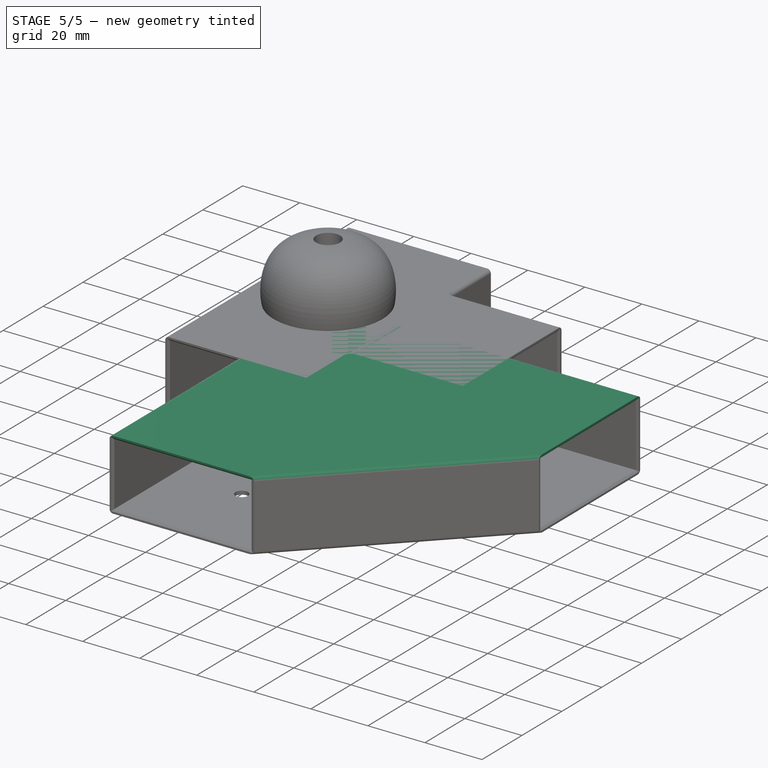
[diagram: stage 5 of 5 — iso view after this stage's code; geometry added in this stage tinted green]
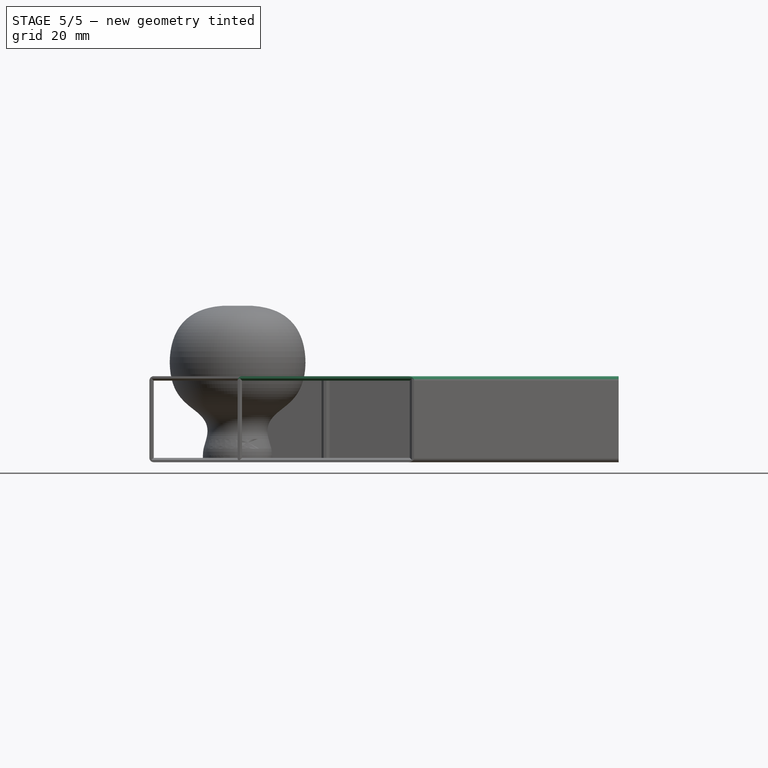
[diagram: stage 5 of 5 — front view after this stage's code; geometry added in this stage tinted green]
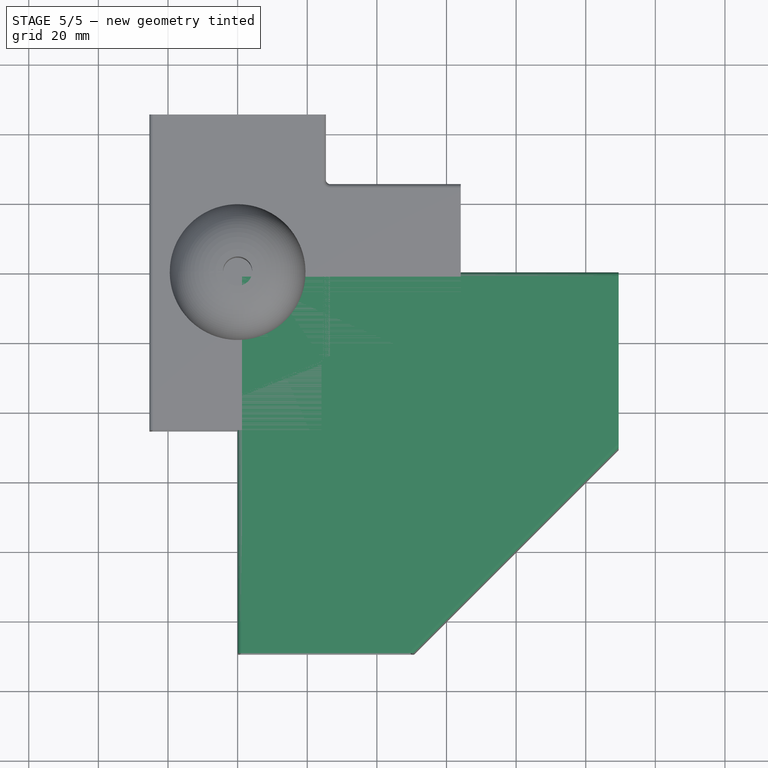
[diagram: stage 5 of 5 — top view after this stage's code; geometry added in this stage tinted green]
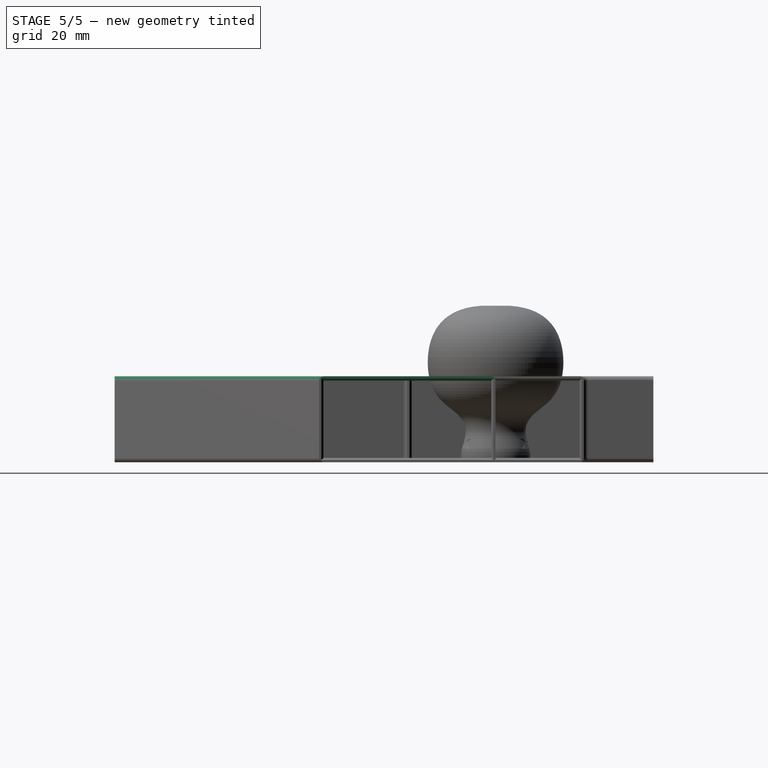
[diagram: stage 5 of 5 — right view after this stage's code; geometry added in this stage tinted green]
FEATURE [Sketcher::SketchObject] Sketch003  label="CP_Top"
  AttachmentOffset = pos=(0,0,23.45) rot=(0,0,1;0rad)
  ExternalGeometry = -> [Sketch]
  FullyConstrained = true
  MapMode = 5
  Placement = pos=(0,0,23.45) rot=(0,0,1;0rad)
  Support = -> [XY_Plane]
  expr: .AttachmentOffset.Base.z = <<CP_Walls>>.AttachmentOffset.Base.z + <<CP_Walls_>>.Length
  sketch-geometry (5):
    g0: LineSegment StartX=109.45 StartY=0 StartZ=0 EndX=0 EndY=0 EndZ=0
    g1: LineSegment StartX=0 StartY=0 StartZ=0 EndX=0 EndY=-109.45 EndZ=0
    g2: LineSegment StartX=0 StartY=-109.45 StartZ=0 EndX=50.7 EndY=-109.45 EndZ=0
    g3: LineSegment StartX=50.7 StartY=-109.45 StartZ=0 EndX=109.45 EndY=-50.7 EndZ=0
    g4: LineSegment StartX=109.45 StartY=-50.7 StartZ=0 EndX=109.45 EndY=0 EndZ=0
  constraints (10):
    c: Coincident(g0,g-3)
    c: Coincident(g1,g0)
    c: Coincident(g1,g-4)
    c: Coincident(g-3,g0)
    c: Coincident(g1,g2)
    c: Coincident(g2,g-5)
    c: Coincident(g2,g3)
    c: Coincident(g3,g-5)
    c: Coincident(g3,g4)
    c: Coincident(g4,g0)
FEATURE [PartDesign::Pad] Pad002  label="CP_Top_"
  BaseFeature = -> Pad001
  Direction = (1,1,1)
  Length = 1.25
  Length2 = 100
  Profile = -> Sketch003
  Refine = true
  Type = 0
  expr: Length = <<CP_Base_>>.Length
FEATURE [PartDesign::Fillet] Fillet
  Base = -> Pad002 [Edge9,Edge1,Edge4,Edge2,Edge8,Edge11,Edge7]
  BaseFeature = -> Pad002
  Radius = 1.25
  SupportTransform = false
  expr: Radius = <<Spreadsheet>>.WallThickness
FEATURE [PartDesign::Chamfer] Chamfer
  Angle = 45
  Base = -> Fillet [Edge15,Edge16,Edge13,Edge14,Edge31,Edge32,Edge29,Edge30]
  BaseFeature = -> Fillet
  ChamferType = 0
  FlipDirection = false
  Size = 0.6
  Size2 = 1
  SupportTransform = false
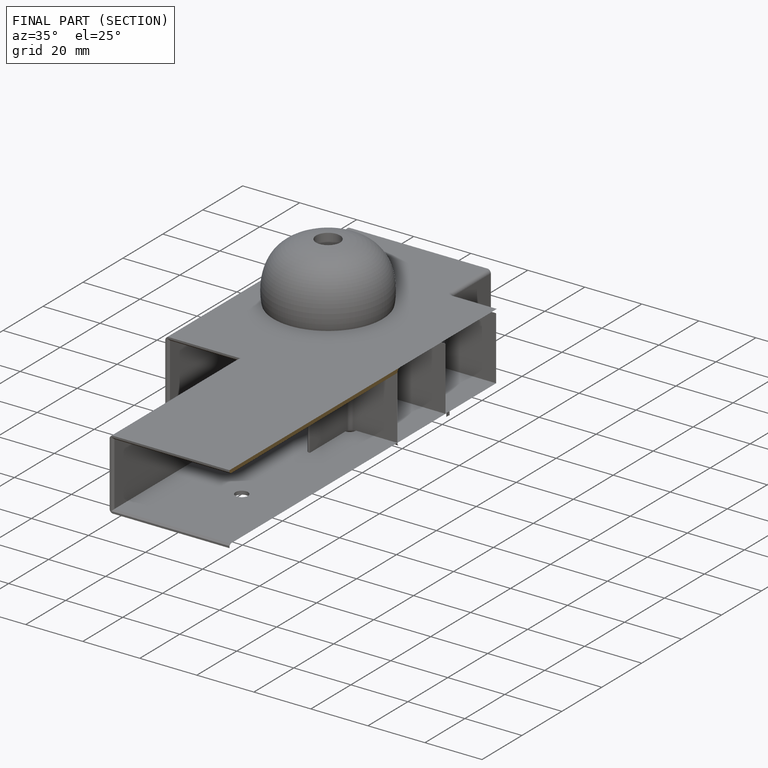
[diagram: finished part — half-section view (interior)]
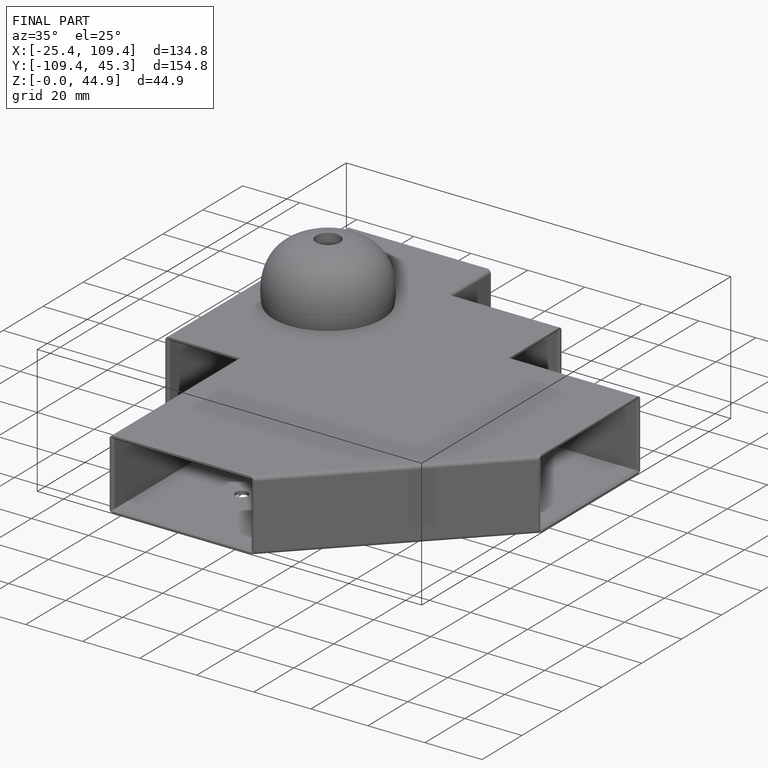
[diagram: finished part — iso view with bounding-box wireframe]
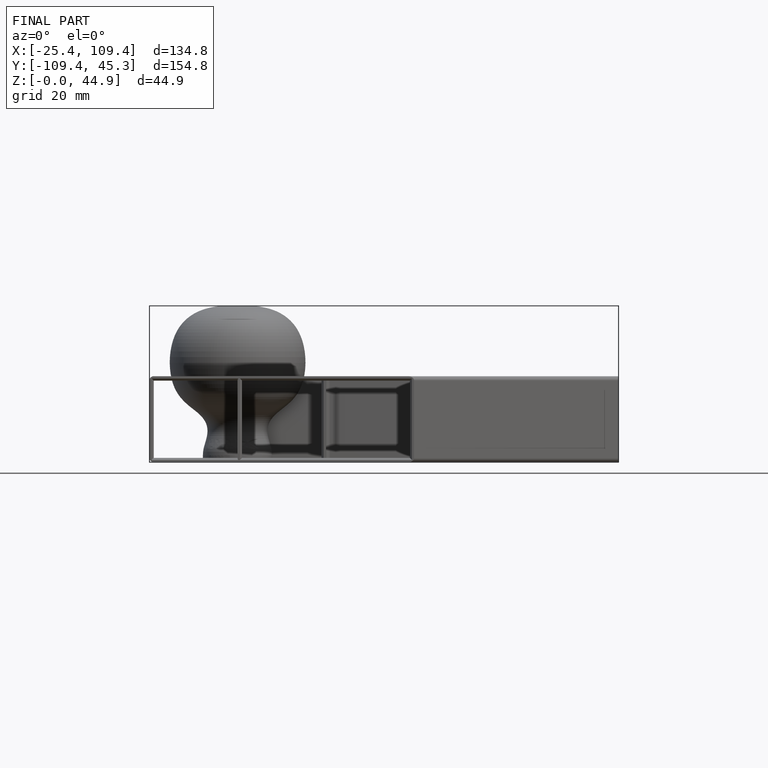
[diagram: finished part — front view with bounding-box wireframe]
